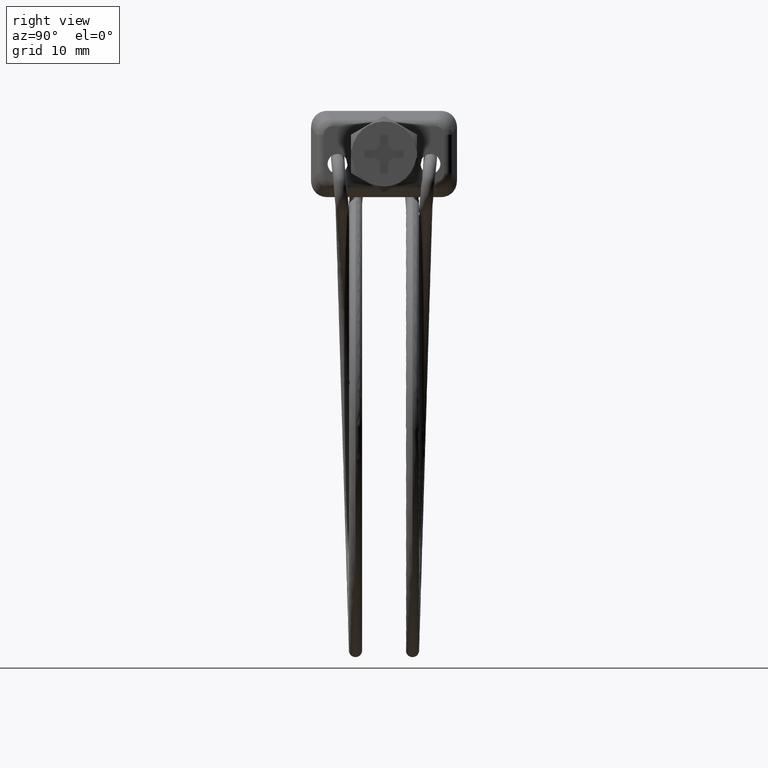
[diagram: clean part render]
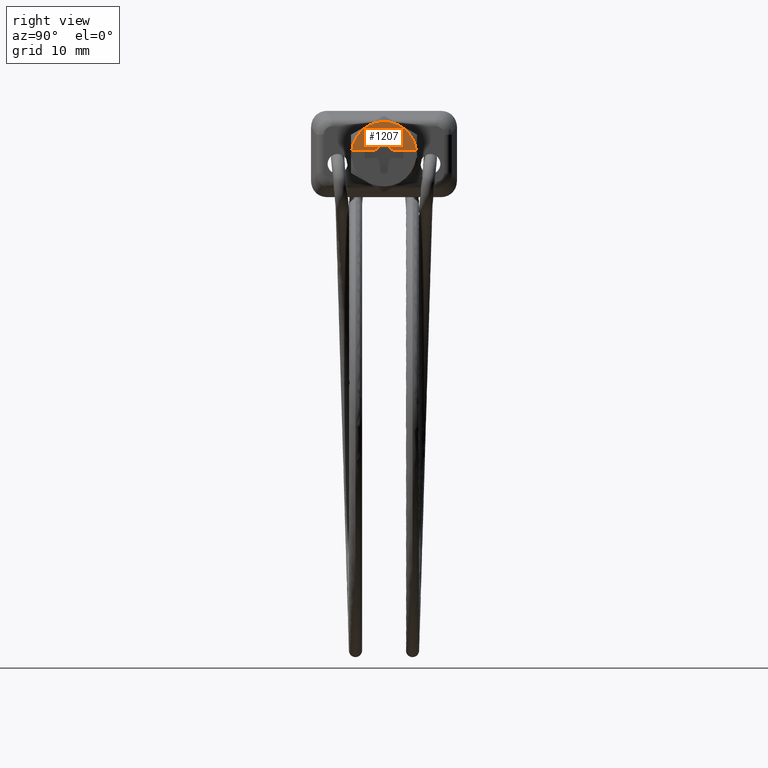
[diagram: same view with one face highlighted and labeled with its STEP entity id]
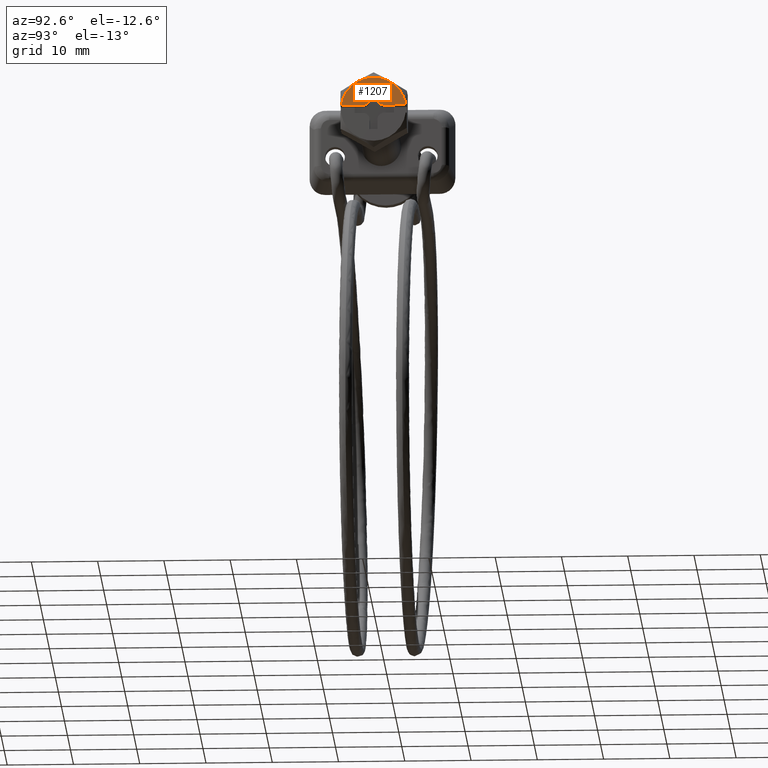
[diagram: same view with one face highlighted and labeled with its STEP entity id]
A machine part, right view. The second image highlights one B-rep face of the part: STEP entity #1207.
A second angle (auxiliary view) of the same face is appended — the face is thin or edge-on in the first view.
In plain terms, the highlighted face is a freeform B-spline surface patch.
Its self-contained STEP definition (entity closure, byte-faithful):
#759=CARTESIAN_POINT('',(4.0,0.599999000000025,3.099999000000110));
#760=VERTEX_POINT('',#759);
#761=CARTESIAN_POINT('',(4.0,-0.599998000000198,3.099999000000110));
#762=VERTEX_POINT('',#761);
#763=CARTESIAN_POINT('',(4.0,0.599999000000025,3.099999000000110));
#764=CARTESIAN_POINT('',(4.0,-0.599998000000198,3.099999000000110));
#765=QUASI_UNIFORM_CURVE('',1,(#763,#764),.UNSPECIFIED.,.F.,.U.);
#766=EDGE_CURVE('',#760,#762,#765,.T.);
#787=CARTESIAN_POINT('',(4.0,0.599999000000025,1.600000000000000));
#788=VERTEX_POINT('',#787);
#789=CARTESIAN_POINT('',(4.0,0.599999000000025,1.600000000000000));
#790=CARTESIAN_POINT('',(4.0,0.599999000000025,3.099999000000110));
#791=QUASI_UNIFORM_CURVE('',1,(#789,#790),.UNSPECIFIED.,.F.,.U.);
#792=EDGE_CURVE('',#788,#760,#791,.T.);
#818=CARTESIAN_POINT('',(4.0,1.599999000000025,0.600000000000108));
#819=VERTEX_POINT('',#818);
#820=CARTESIAN_POINT('',(4.0,0.599999000000025,1.600000000000000));
#821=CARTESIAN_POINT('',(4.000000000000000,0.599999000000025,0.600000000000000));
#822=CARTESIAN_POINT('',(4.0,1.599999000000025,0.600000000000108));
#830=(BOUNDED_CURVE()B_SPLINE_CURVE(2,(#820,#821,#822),.UNSPECIFIED.,.F.,.U.)CURVE()GEOMETRIC_REPRESENTATION_ITEM()QUASI_UNIFORM_CURVE()RATIONAL_B_SPLINE_CURVE((1.0,0.707106781186548,1.0))REPRESENTATION_ITEM(''));
#831=EDGE_CURVE('',#788,#819,#830,.T.);
#855=CARTESIAN_POINT('',(4.0,4.863124347857450,0.600000000000108));
#856=VERTEX_POINT('',#855);
#864=CARTESIAN_POINT('',(4.0,4.863124347857450,0.600000000000108));
#865=CARTESIAN_POINT('',(4.0,1.599999000000025,0.600000000000108));
#866=QUASI_UNIFORM_CURVE('',1,(#864,#865),.UNSPECIFIED.,.F.,.U.);
#867=EDGE_CURVE('',#856,#819,#866,.T.);
#1099=CARTESIAN_POINT('',(4.0,-1.599998000000085,0.600000000000000));
#1100=VERTEX_POINT('',#1099);
#1106=CARTESIAN_POINT('',(4.0,-4.863124347857450,0.600000000000108));
#1107=VERTEX_POINT('',#1106);
#1108=CARTESIAN_POINT('',(4.0,-1.599998000000085,0.600000000000000));
#1109=CARTESIAN_POINT('',(4.0,-4.863124347857450,0.600000000000108));
#1110=QUASI_UNIFORM_CURVE('',1,(#1108,#1109),.UNSPECIFIED.,.F.,.U.);
#1111=EDGE_CURVE('',#1100,#1107,#1110,.T.);
#1137=CARTESIAN_POINT('',(4.0,-0.599998000000085,1.600000000000000));
#1138=VERTEX_POINT('',#1137);
#1139=CARTESIAN_POINT('',(4.0,-1.599998000000085,0.600000000000000));
#1140=CARTESIAN_POINT('',(4.000000000000000,-0.599998000000085,0.600000000000000));
#1141=CARTESIAN_POINT('',(4.0,-0.599998000000085,1.600000000000000));
#1149=(BOUNDED_CURVE()B_SPLINE_CURVE(2,(#1139,#1140,#1141),.UNSPECIFIED.,.F.,.U.)CURVE()GEOMETRIC_REPRESENTATION_ITEM()QUASI_UNIFORM_CURVE()RATIONAL_B_SPLINE_CURVE((1.0,0.707106781186548,1.0))REPRESENTATION_ITEM(''));
#1150=EDGE_CURVE('',#1100,#1138,#1149,.T.);
#1167=CARTESIAN_POINT('',(4.0,-0.599998000000198,3.099999000000110));
#1168=CARTESIAN_POINT('',(4.0,-0.599998000000085,1.600000000000000));
#1169=QUASI_UNIFORM_CURVE('',1,(#1167,#1168),.UNSPECIFIED.,.F.,.U.);
#1170=EDGE_CURVE('',#762,#1138,#1169,.T.);
#1178=CARTESIAN_POINT('',(4.0,-5.348950542660116,0.385215133674927));
#1179=CARTESIAN_POINT('',(4.0,5.348950716578997,0.385215133674927));
#1180=CARTESIAN_POINT('',(4.0,-5.348950542660116,5.114782472336744));
#1181=CARTESIAN_POINT('',(4.0,5.348950716578997,5.114782472336744));
#1182=B_SPLINE_SURFACE_WITH_KNOTS('',1,1,((#1178,#1180),(#1179,#1181)),.UNSPECIFIED.,.F.,.F.,.U.,(2,2),(2,2),(0.0,10.697901259239110),(0.0,4.729567338661817),.UNSPECIFIED.);
#1183=ORIENTED_EDGE('',*,*,#1111,.F.);
#1184=ORIENTED_EDGE('',*,*,#1150,.T.);
#1185=ORIENTED_EDGE('',*,*,#1170,.F.);
#1186=ORIENTED_EDGE('',*,*,#766,.F.);
#1187=ORIENTED_EDGE('',*,*,#792,.F.);
#1188=ORIENTED_EDGE('',*,*,#831,.T.);
#1189=ORIENTED_EDGE('',*,*,#867,.F.);
#1190=CARTESIAN_POINT('',(4.0,-4.863124347857444,0.600000000000106));
#1191=CARTESIAN_POINT('',(4.000000000000001,-4.332601479348219,4.899997798236649));
#1192=CARTESIAN_POINT('',(4.0,0.0,4.899997798236650));
#1193=CARTESIAN_POINT('',(4.000000000000001,4.332601479348219,4.899997798236649));
#1194=CARTESIAN_POINT('',(4.0,4.863124347857444,0.600000000000107));
#1202=(BOUNDED_CURVE()B_SPLINE_CURVE(2,(#1190,#1191,#1192,#1193,#1194),.UNSPECIFIED.,.F.,.U.)B_SPLINE_CURVE_WITH_KNOTS((3,2,3),(0.0,0.500000000000000,1.0),.UNSPECIFIED.)CURVE()GEOMETRIC_REPRESENTATION_ITEM()RATIONAL_B_SPLINE_CURVE((1.0,0.749149195625625,1.0,0.749149195625625,1.0))REPRESENTATION_ITEM(''));
#1203=EDGE_CURVE('',#1107,#856,#1202,.T.);
#1204=ORIENTED_EDGE('',*,*,#1203,.F.);
#1205=EDGE_LOOP('',(#1183,#1184,#1185,#1186,#1187,#1188,#1189,#1204));
#1206=FACE_OUTER_BOUND('',#1205,.T.);
#1207=ADVANCED_FACE('',(#1206),#1182,.T.);